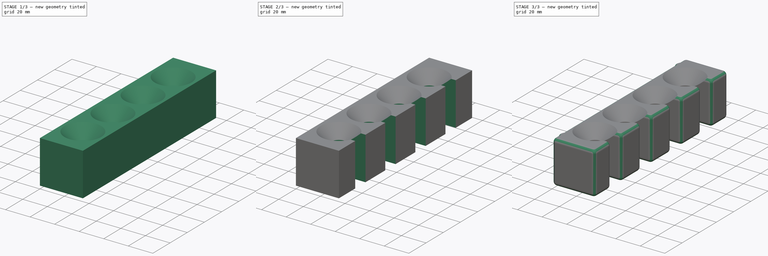
[diagram: build sequence overview — one tinted view per stage of 3, left to right]
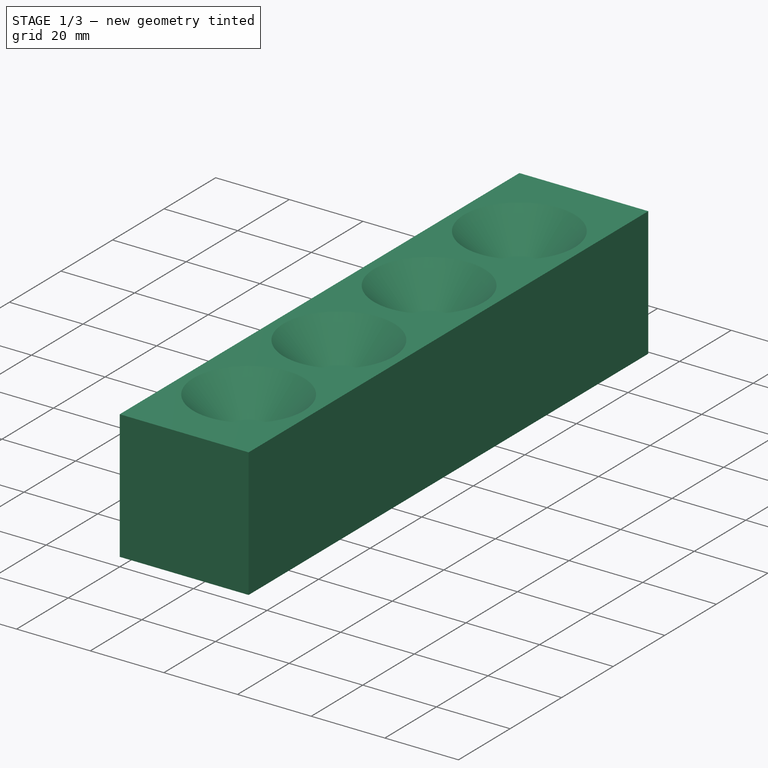
[diagram: stage 1 of 3 — iso view after this stage's code; geometry added in this stage tinted green]
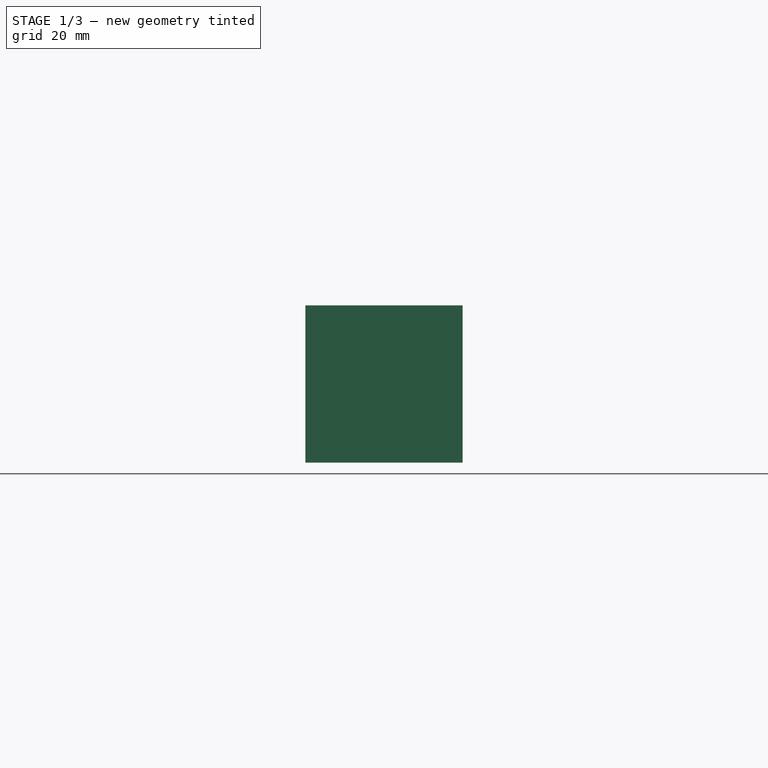
[diagram: stage 1 of 3 — front view after this stage's code; geometry added in this stage tinted green]
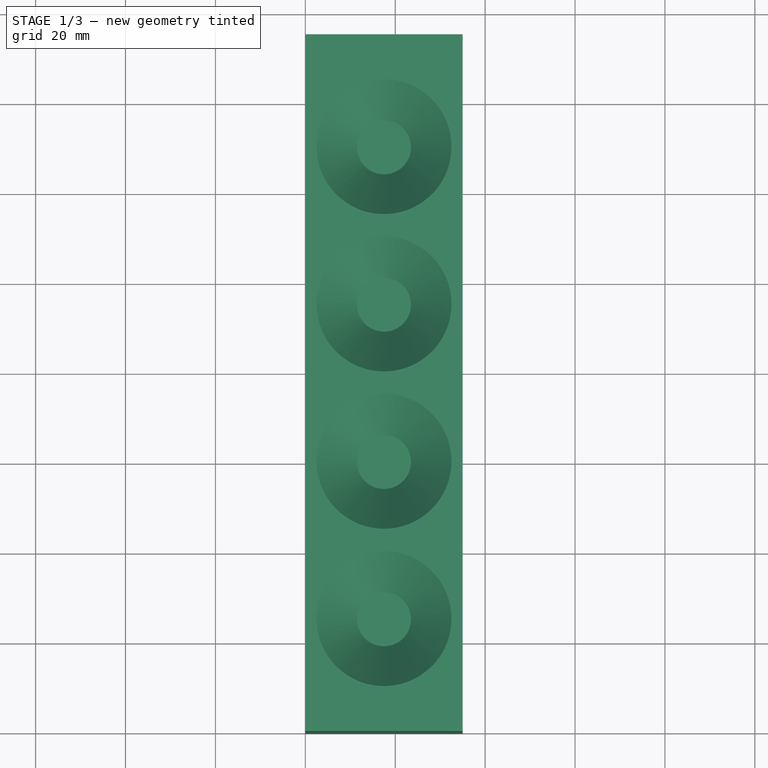
[diagram: stage 1 of 3 — top view after this stage's code; geometry added in this stage tinted green]
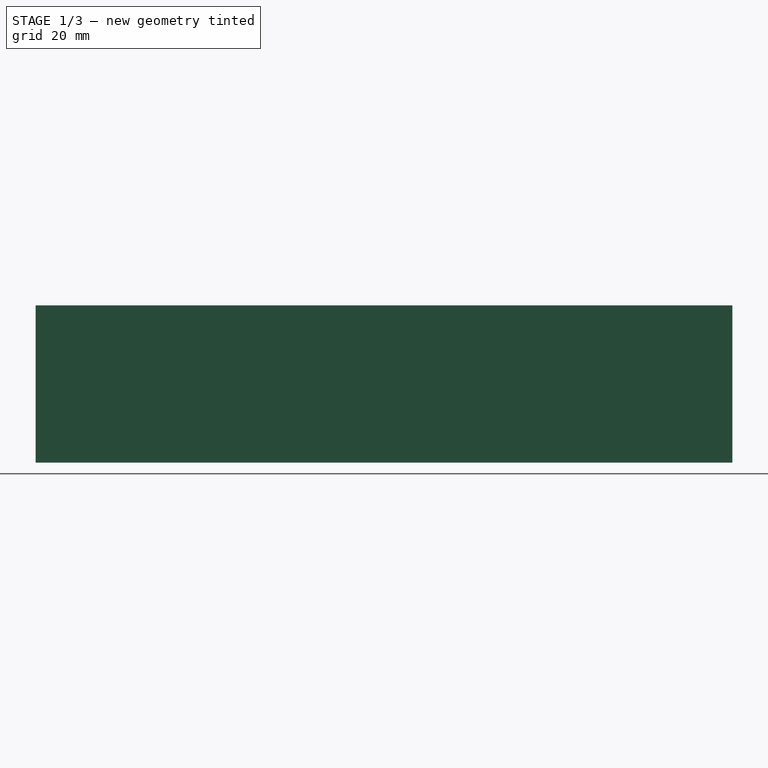
[diagram: stage 1 of 3 — right view after this stage's code; geometry added in this stage tinted green]
FCSTD DOCUMENT  (FreeCAD 0.21R33668 +7 (Git))
Label: ProbeHolder
License: All rights reserved
LicenseURL: http://en.wikipedia.org/wiki/All_rights_reserved
objects: Sketcher::SketchObject×2, PartDesign::Pocket×2, PartDesign::SubtractiveTorus×2, PartDesign::AdditiveBox×1, PartDesign::Fillet×1, PartDesign::Body×1, App::Part×1
note: 15 computed .brp shape members not serialized (recipe doc carries the construction recipe); baked Part::Feature solids carry a one-line shape summary decoded from their .brp

FEATURE [PartDesign::AdditiveBox] Box
  AttacherType = Attacher::AttachEngine3D
  Height = 35
  Length = 35
  Width = 155
FEATURE [Sketcher::SketchObject] Sketch  label="ProbeSinkSchemaSketch"
  ExternalGeometry = -> [Box]
  FullyConstrained = true
  MapMode = 5
  Placement = pos=(0,0,35) rot=(0,0,1;0rad)
  Support = -> [Box]
  sketch-geometry (6):
    g0: LineSegment StartX=17.5 StartY=155 StartZ=0 EndX=17.5 EndY=0 EndZ=0
    g1: GeomPoint X=17.5 Y=77.5 Z=0
    g2: Circle CenterX=17.5 CenterY=130 CenterZ=0 NormalX=0 NormalY=0 NormalZ=1 AngleXU=0 Radius=15
    g3: Circle CenterX=17.5 CenterY=95 CenterZ=0 NormalX=0 NormalY=0 NormalZ=1 AngleXU=0 Radius=15
    g4: Circle CenterX=17.5 CenterY=60 CenterZ=0 NormalX=0 NormalY=0 NormalZ=1 AngleXU=0 Radius=15
    g5: Circle CenterX=17.5 CenterY=25 CenterZ=0 NormalX=0 NormalY=0 NormalZ=1 AngleXU=0 Radius=15
  constraints (16):
    c: PointOnObject(g0,g-1)
    c: Symmetric(g-4,g-3,g0)
    c: Horizontal(g0,g-4)
    c: Symmetric(g0,g0,g1)
    c: PointOnObject(g2,g0)
    c: PointOnObject(g3,g0)
    c: PointOnObject(g4,g0)
    c: PointOnObject(g5,g0)
    c: Equal(g2,g3)
    c: Equal(g2,g4)
    c: Equal(g2,g5)
    c: Diameter(g2) = 30
    c: DistanceY(g3,g2) = 35
    c: DistanceY(g4,g3) = 35
    c: DistanceY(g5,g4) = 35
    c: DistanceY(g4,g1) = 17.5
FEATURE [PartDesign::Pocket] Pocket  label="ProbeSink"
  BaseFeature = -> Box
  Direction = (0,0,-1)
  Length = 9
  Length2 = 5
  Profile = -> Sketch
  ReferenceAxis = -> Sketch [N_Axis]
  TaperAngle = -45
  Type = 0
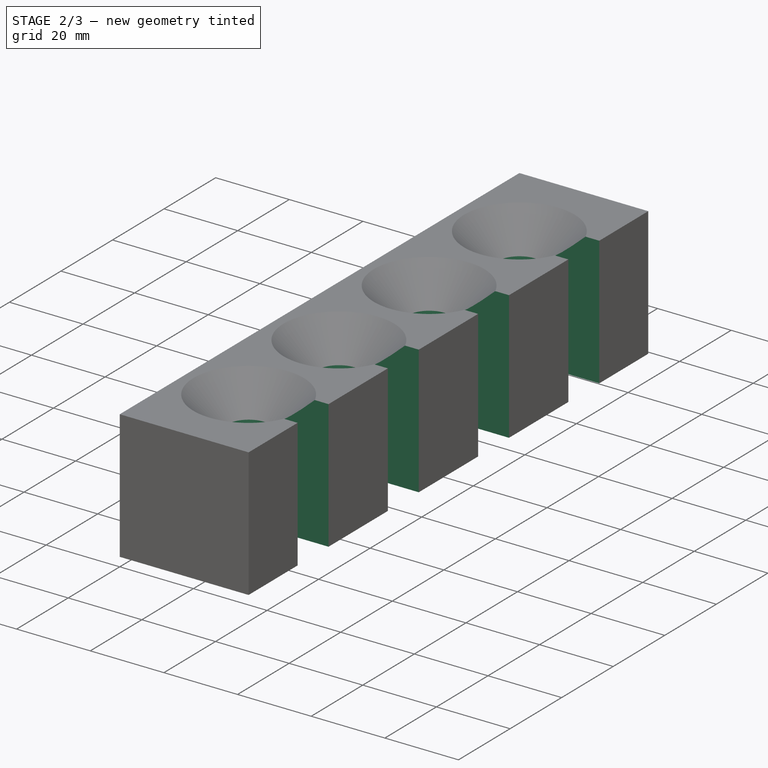
[diagram: stage 2 of 3 — iso view after this stage's code; geometry added in this stage tinted green]
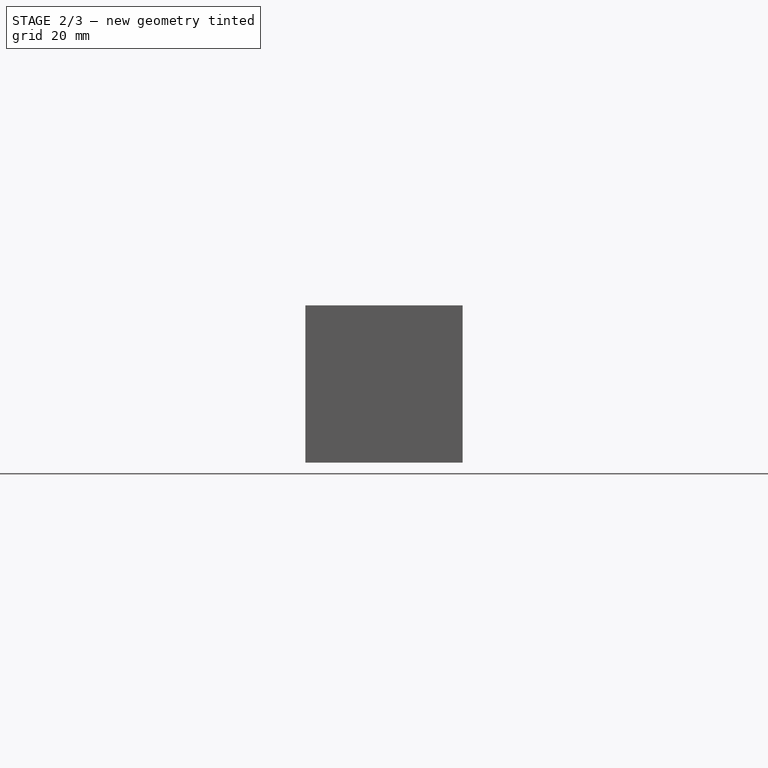
[diagram: stage 2 of 3 — front view after this stage's code; geometry added in this stage tinted green]
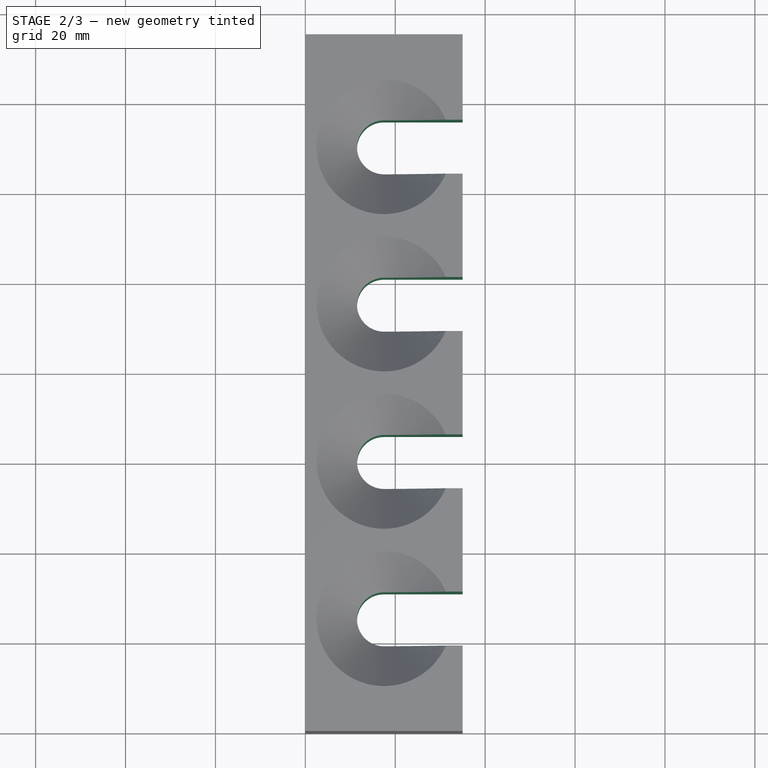
[diagram: stage 2 of 3 — top view after this stage's code; geometry added in this stage tinted green]
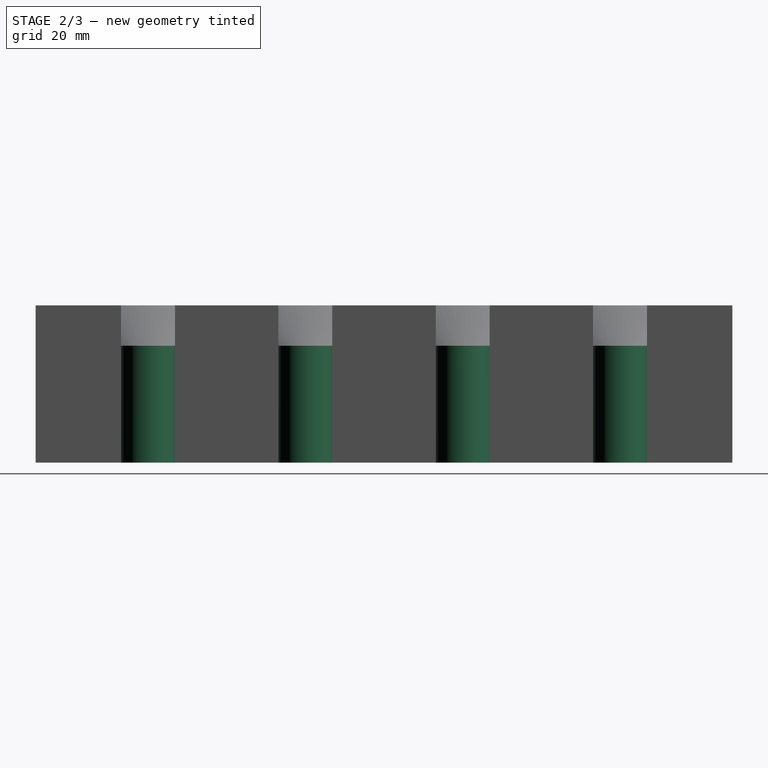
[diagram: stage 2 of 3 — right view after this stage's code; geometry added in this stage tinted green]
FEATURE [Sketcher::SketchObject] Sketch001  label="ProbePocketSchema"
  ExternalGeometry = -> [Pocket]
  FullyConstrained = false
  MapMode = 5
  Placement = pos=(0,0,35) rot=(0,0,1;0rad)
  Support = -> [Pocket]
  sketch-geometry (21):
    g0: GeomPoint X=17.5 Y=77.5 Z=0
    g1: LineSegment StartX=17.5 StartY=136 StartZ=0 EndX=35 EndY=136 EndZ=0
    g2: LineSegment StartX=35 StartY=136 StartZ=0 EndX=35 EndY=124 EndZ=0
    g3: LineSegment StartX=35 StartY=124 StartZ=0 EndX=17.5 EndY=124 EndZ=0
    g4: LineSegment StartX=17.5 StartY=124 StartZ=0 EndX=17.5 EndY=136 EndZ=0
    g5: LineSegment StartX=17.5 StartY=101 StartZ=0 EndX=35 EndY=101 EndZ=0
    g6: LineSegment StartX=35 StartY=101 StartZ=0 EndX=35 EndY=89 EndZ=0
    g7: LineSegment StartX=35 StartY=89 StartZ=0 EndX=17.5 EndY=89 EndZ=0
    g8: LineSegment StartX=17.5 StartY=89 StartZ=0 EndX=17.5 EndY=101 EndZ=0
    g9: LineSegment StartX=17.5 StartY=66 StartZ=0 EndX=35 EndY=66 EndZ=0
    g10: LineSegment StartX=35 StartY=66 StartZ=0 EndX=35 EndY=54 EndZ=0
    g11: LineSegment StartX=35 StartY=54 StartZ=0 EndX=17.5 EndY=54 EndZ=0
    g12: LineSegment StartX=17.5 StartY=54 StartZ=0 EndX=17.5 EndY=66 EndZ=0
    g13: LineSegment StartX=17.5 StartY=31 StartZ=0 EndX=35 EndY=31 EndZ=0
    g14: LineSegment StartX=35 StartY=31 StartZ=0 EndX=35 EndY=19 EndZ=0
    g15: LineSegment StartX=35 StartY=19 StartZ=0 EndX=17.5 EndY=19 EndZ=0
    g16: LineSegment StartX=17.5 StartY=19 StartZ=0 EndX=17.5 EndY=31 EndZ=0
    g17: ArcOfCircle CenterX=17.5 CenterY=25 CenterZ=0 NormalX=0 NormalY=0 NormalZ=1 AngleXU=0 Radius=6 StartAngle=1.5708 EndAngle=4.71239
    g18: ArcOfCircle CenterX=17.5 CenterY=95 CenterZ=0 NormalX=0 NormalY=0 NormalZ=1 AngleXU=0 Radius=6 StartAngle=1.5708 EndAngle=4.71239
    g19: ArcOfCircle CenterX=17.5 CenterY=130 CenterZ=0 NormalX=0 NormalY=0 NormalZ=1 AngleXU=0 Radius=6 StartAngle=1.5708 EndAngle=4.71239
    g20: ArcOfCircle CenterX=17.5 CenterY=60 CenterZ=0 NormalX=0 NormalY=0 NormalZ=1 AngleXU=0 Radius=6 StartAngle=1.5708 EndAngle=4.71239
  constraints (50):
    c: Symmetric(g-3,g-1,g0)
    c: Coincident(g1,g2)
    c: Coincident(g2,g3)
    c: Coincident(g3,g4)
    c: Coincident(g4,g1)
    c: Horizontal(g1)
    c: Horizontal(g3)
    c: Vertical(g2)
    c: PointOnObject(g1,g-8)
    c: DistanceY(g2,g2) = 12
    c: Symmetric(g1,g3,g-4)
    c: Coincident(g5,g6)
    c: Coincident(g6,g7)
    c: Coincident(g7,g8)
    c: Coincident(g8,g5)
    c: Horizontal(g5)
    c: Horizontal(g7)
    c: Vertical(g6)
    c: Coincident(g9,g10)
    c: Coincident(g10,g11)
    c: Coincident(g11,g12)
    c: Coincident(g12,g9)
    c: Horizontal(g9)
    c: Horizontal(g11)
    c: Vertical(g10)
    c: Coincident(g13,g14)
    c: Coincident(g14,g15)
    c: Coincident(g15,g16)
    c: Coincident(g16,g13)
    c: Horizontal(g13)
    c: Horizontal(g15)
    c: Vertical(g14)
    c: Equal(g2,g6)
    c: Equal(g10,g2)
    c: Equal(g2,g14)
    c: PointOnObject(g13,g-8)
    c: PointOnObject(g9,g-8)
    c: PointOnObject(g5,g-8)
    c: Symmetric(g5,g7,g-7)
    c: Symmetric(g9,g11,g-6)
    c: Symmetric(g13,g15,g-5)
    c: Coincident(g17,g-5)
    c: Coincident(g17,g13)
    c: Coincident(g18,g-7)
    c: Coincident(g18,g5)
    c: Coincident(g19,g-4)
    c: Coincident(g19,g1)
    c: Coincident(g20,g-6)
    c: Coincident(g20,g9)
    c: Coincident(g20,g11)
FEATURE [PartDesign::Pocket] Pocket001  label="ProbePocket"
  BaseFeature = -> Pocket
  Direction = (0,0,-1)
  Length = 5
  Length2 = 5
  Profile = -> Sketch001
  ReferenceAxis = -> Sketch001 [N_Axis]
  Type = 1
FEATURE [PartDesign::SubtractiveTorus] Torus
  Angle1 = -180
  Angle2 = 180
  Angle3 = 360
  AttacherType = Attacher::AttachEngine3D
  AttachmentOffset = pos=(-9,17.5,-10) rot=(0,0,1;0rad)
  BaseFeature = -> Pocket001
  MapMode = 7
  Placement = pos=(-9,10,17.5) rot=(1,0,0;1.5708rad)
  Radius1 = 16
  Radius2 = 3
  Support = -> [Pocket001]
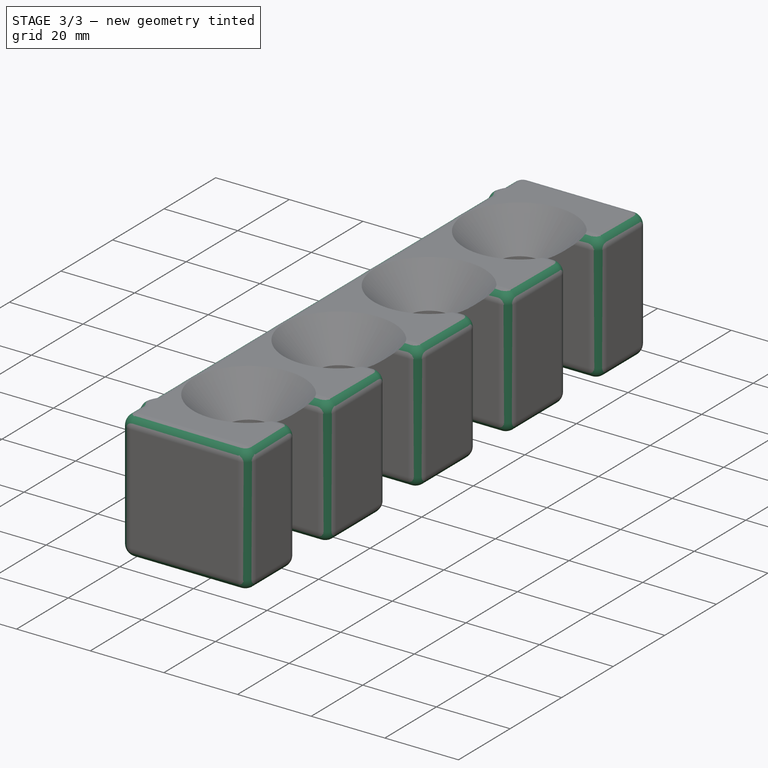
[diagram: stage 3 of 3 — iso view after this stage's code; geometry added in this stage tinted green]
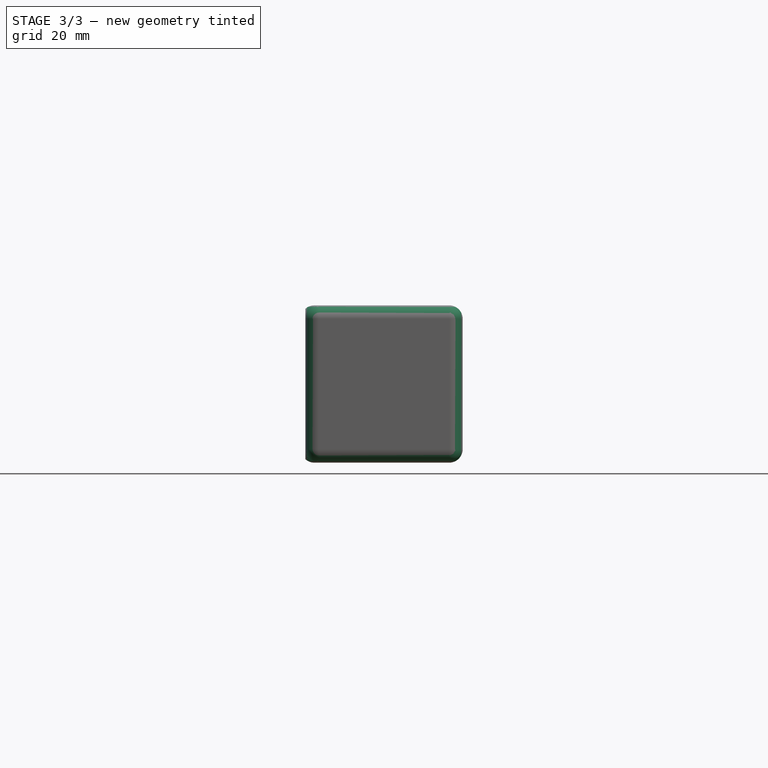
[diagram: stage 3 of 3 — front view after this stage's code; geometry added in this stage tinted green]
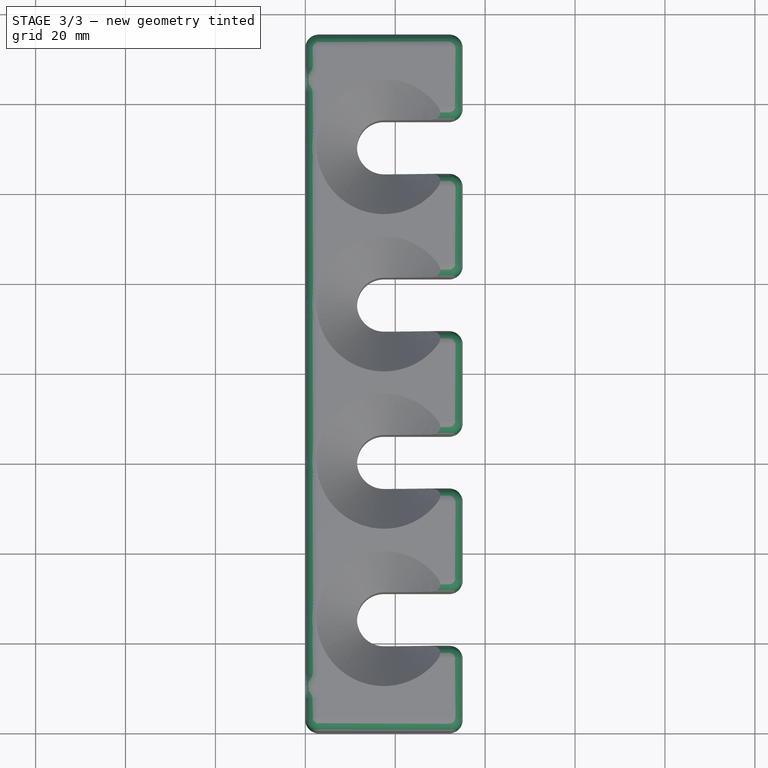
[diagram: stage 3 of 3 — top view after this stage's code; geometry added in this stage tinted green]
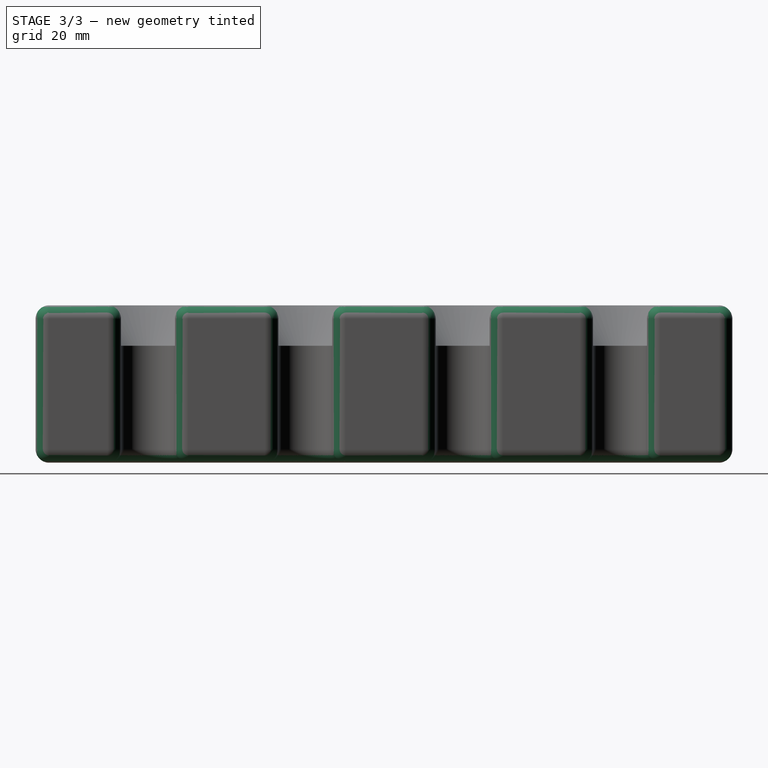
[diagram: stage 3 of 3 — right view after this stage's code; geometry added in this stage tinted green]
FEATURE [PartDesign::SubtractiveTorus] Torus001
  Angle1 = -180
  Angle2 = 180
  Angle3 = 360
  AttacherType = Attacher::AttachEngine3D
  AttachmentOffset = pos=(-9,17.5,-145) rot=(0,0,1;0rad)
  BaseFeature = -> Torus
  MapMode = 7
  Placement = pos=(-9,145,17.5) rot=(1,0,0;1.5708rad)
  Radius1 = 16
  Radius2 = 3
  Support = -> [Torus]
FEATURE [PartDesign::Fillet] Fillet
  Base = -> Torus001 [Face2,Face10,Face23,Face19,Face15,Face11,Face5,Edge28,Edge26,Edge24,Edge22,Edge20,Edge18,Edge16,Edge14,Edge44,Edge40,Edge36,Edge32,Edge33,Edge34,Edge37,Edge38,Edge41,Edge42,Edge45,Edge46,Edge2,Edge3]
  BaseFeature = -> Torus001
  Placement = pos=(-9,145,17.5) rot=(1,0,0;1.5708rad)
  Radius = 3
  SupportTransform = false
  UseAllEdges = false
FEATURE [PartDesign::Body] Body  label="ProbeHolderBody"
  Group = -> [Box,Sketch,Pocket,Sketch001,Pocket001,Torus,Torus001,Fillet]
  Origin = -> Origin001
  Tip = -> Fillet
FEATURE [App::Part] Part  label="ProbeHolderPart"
  Group = -> [Body]
  Origin = -> Origin
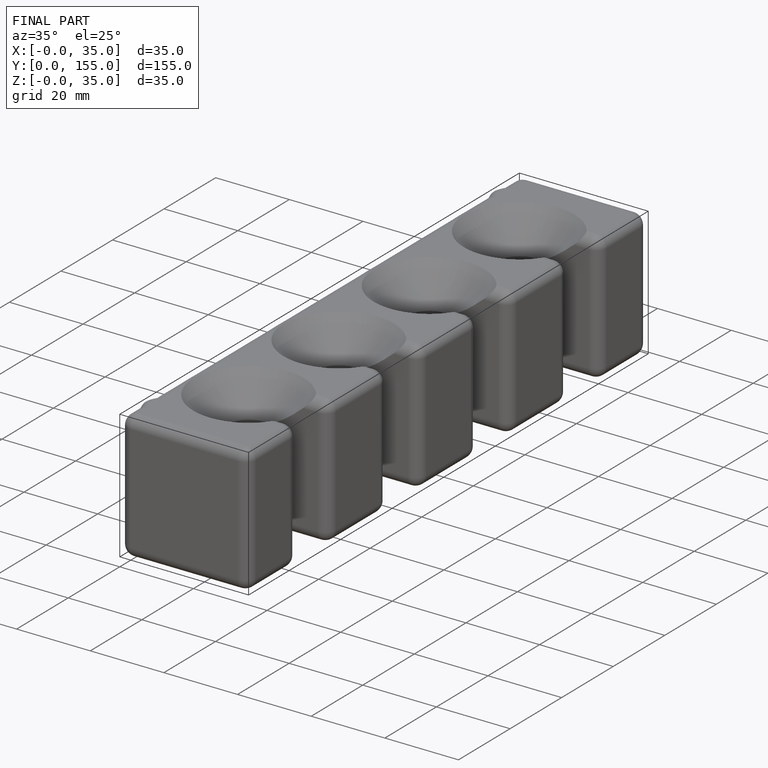
[diagram: finished part — iso view with bounding-box wireframe]
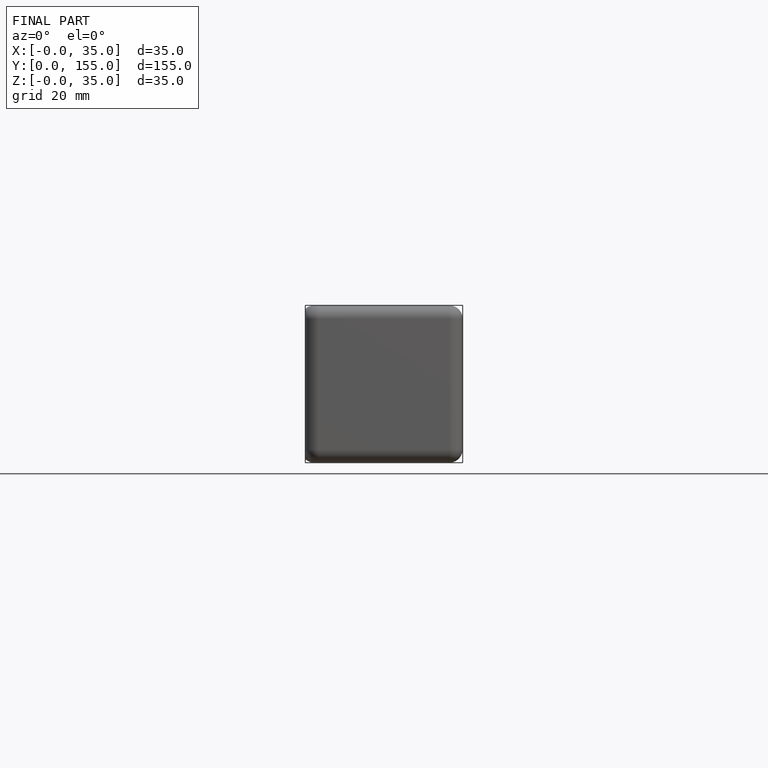
[diagram: finished part — front view with bounding-box wireframe]
